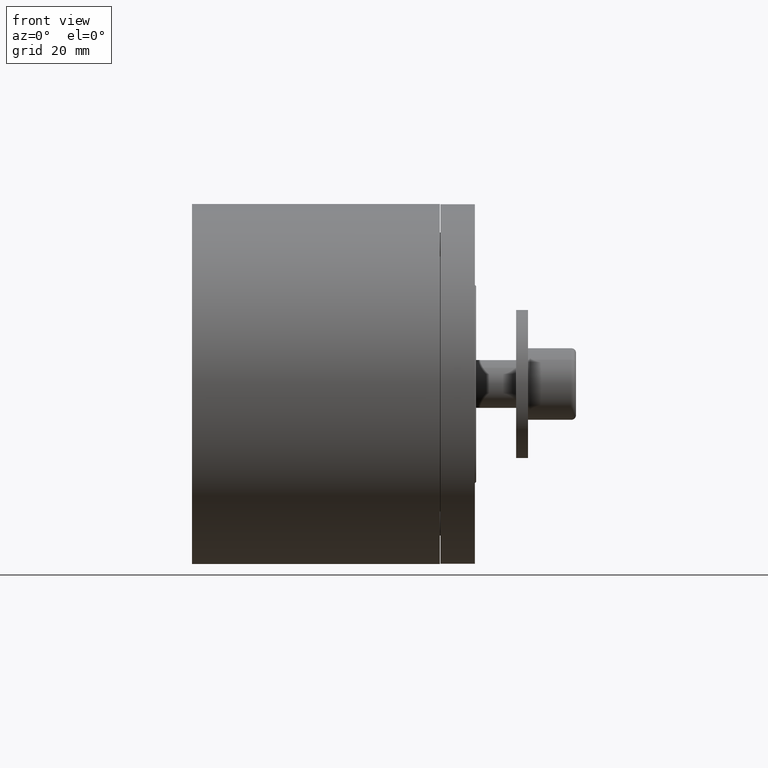
[diagram: clean part render]
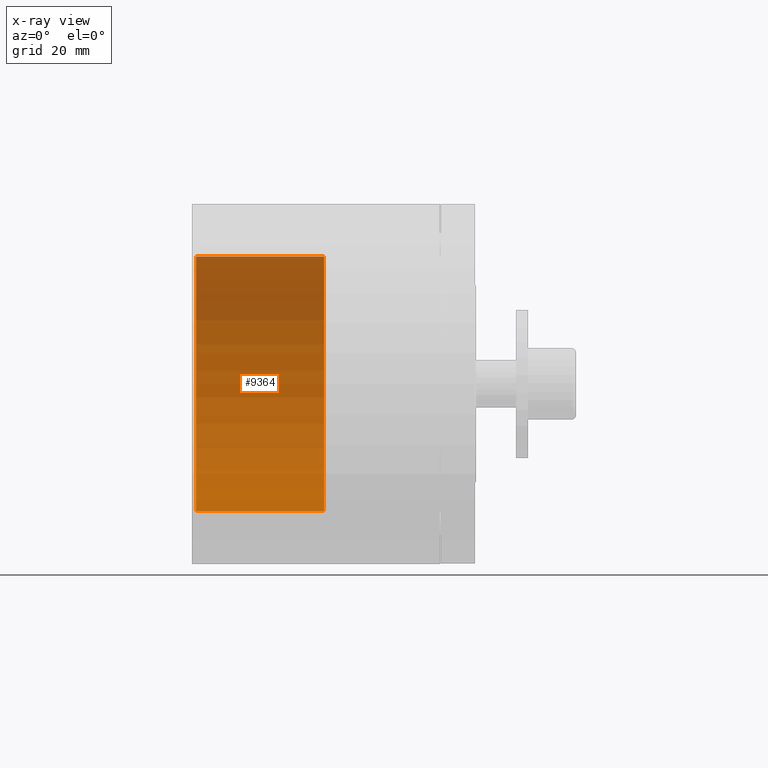
[diagram: x-ray — body ghosted, one internal face saturated and labeled with its STEP entity id]
A machine part, front view, then the same camera in x-ray: the body is ghosted and one INTERNAL B-rep face — a face not visible from any outside direction — is saturated and labeled: STEP entity #9364.
In plain terms, the highlighted cylindrical surface (partial cylindrical patch) has radius 31.85 mm, axis along (-1, -0, -0).
Its self-contained STEP definition (entity closure, byte-faithful):
#144 = CARTESIAN_POINT ( 'NONE',  ( -92.84011180044485911, 3.900500055284320622E-15, -31.85000000000000497 ) ) ;
#195 = DIRECTION ( 'NONE',  ( -1.000000000000000000, -0.000000000000000000, -0.000000000000000000 ) ) ;
#1214 = VERTEX_POINT ( 'NONE', #13826 ) ;
#1492 = VECTOR ( 'NONE', #195, 1000.000000000000000 ) ;
#2331 = ORIENTED_EDGE ( 'NONE', *, *, #4632, .T. ) ;
#2809 = CARTESIAN_POINT ( 'NONE',  ( 0.000000000000000000, 0.000000000000000000, 31.85000000000000497 ) ) ;
#2948 = DIRECTION ( 'NONE',  ( 0.000000000000000000, 0.000000000000000000, 1.000000000000000000 ) ) ;
#3263 = ORIENTED_EDGE ( 'NONE', *, *, #12665, .T. ) ;
#3854 = DIRECTION ( 'NONE',  ( -1.000000000000000000, -0.000000000000000000, -0.000000000000000000 ) ) ;
#4175 = VECTOR ( 'NONE', #12895, 1000.000000000000000 ) ;
#4632 = EDGE_CURVE ( 'NONE', #9717, #6371, #5138, .T. ) ;
#4738 = CARTESIAN_POINT ( 'NONE',  ( -92.84011180044485911, 0.000000000000000000, 31.85000000000000497 ) ) ;
#4860 = CIRCLE ( 'NONE', #10269, 31.85000000000000497 ) ;
#5138 = CIRCLE ( 'NONE', #13336, 31.85000000000000497 ) ;
#5146 = CARTESIAN_POINT ( 'NONE',  ( 0.000000000000000000, 0.000000000000000000, 0.000000000000000000 ) ) ;
#5194 = CARTESIAN_POINT ( 'NONE',  ( -92.84011180044485911, 0.000000000000000000, 0.000000000000000000 ) ) ;
#5356 = FACE_OUTER_BOUND ( 'NONE', #13509, .T. ) ;
#5834 = CARTESIAN_POINT ( 'NONE',  ( 32.00000000000000000, 3.900500055284320622E-15, -31.85000000000000497 ) ) ;
#6371 = VERTEX_POINT ( 'NONE', #5834 ) ;
#6625 = AXIS2_PLACEMENT_3D ( 'NONE', #5194, #8576, #2948 ) ;
#7100 = EDGE_CURVE ( 'NONE', #14412, #1214, #4860, .T. ) ;
#7264 = ORIENTED_EDGE ( 'NONE', *, *, #12734, .F. ) ;
#7506 = DIRECTION ( 'NONE',  ( 0.000000000000000000, 0.000000000000000000, 1.000000000000000000 ) ) ;
#8525 = DIRECTION ( 'NONE',  ( -1.000000000000000000, -0.000000000000000000, -0.000000000000000000 ) ) ;
#8576 = DIRECTION ( 'NONE',  ( -1.000000000000000000, -0.000000000000000000, -0.000000000000000000 ) ) ;
#8634 = DIRECTION ( 'NONE',  ( 0.000000000000000000, 0.000000000000000000, 1.000000000000000000 ) ) ;
#8712 = LINE ( 'NONE', #144, #4175 ) ;
#9364 = ADVANCED_FACE ( 'NONE', ( #5356 ), #10764, .T. ) ;
#9717 = VERTEX_POINT ( 'NONE', #12611 ) ;
#10269 = AXIS2_PLACEMENT_3D ( 'NONE', #5146, #8525, #7506 ) ;
#10764 = CYLINDRICAL_SURFACE ( 'NONE', #6625, 31.85000000000000497 ) ;
#11747 = ORIENTED_EDGE ( 'NONE', *, *, #7100, .F. ) ;
#12611 = CARTESIAN_POINT ( 'NONE',  ( 32.00000000000000000, 0.000000000000000000, 31.85000000000000497 ) ) ;
#12665 = EDGE_CURVE ( 'NONE', #6371, #1214, #8712, .T. ) ;
#12734 = EDGE_CURVE ( 'NONE', #9717, #14412, #14112, .T. ) ;
#12895 = DIRECTION ( 'NONE',  ( -1.000000000000000000, -0.000000000000000000, -0.000000000000000000 ) ) ;
#13173 = CARTESIAN_POINT ( 'NONE',  ( 32.00000000000000000, 0.000000000000000000, 0.000000000000000000 ) ) ;
#13336 = AXIS2_PLACEMENT_3D ( 'NONE', #13173, #3854, #8634 ) ;
#13509 = EDGE_LOOP ( 'NONE', ( #2331, #3263, #11747, #7264 ) ) ;
#13826 = CARTESIAN_POINT ( 'NONE',  ( 0.000000000000000000, 3.900500055284320622E-15, -31.85000000000000497 ) ) ;
#14112 = LINE ( 'NONE', #4738, #1492 ) ;
#14412 = VERTEX_POINT ( 'NONE', #2809 ) ;